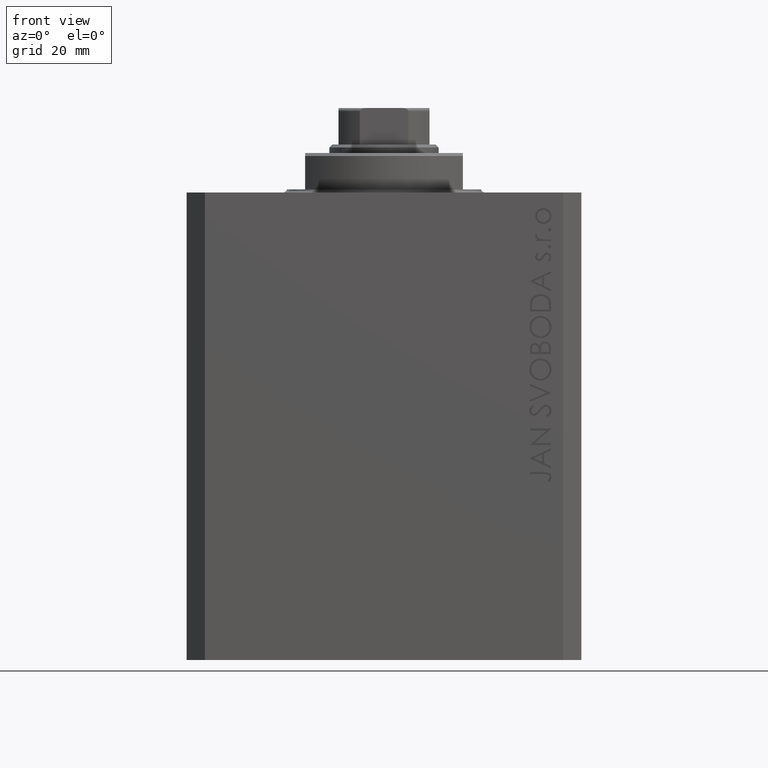
[diagram: clean part render]
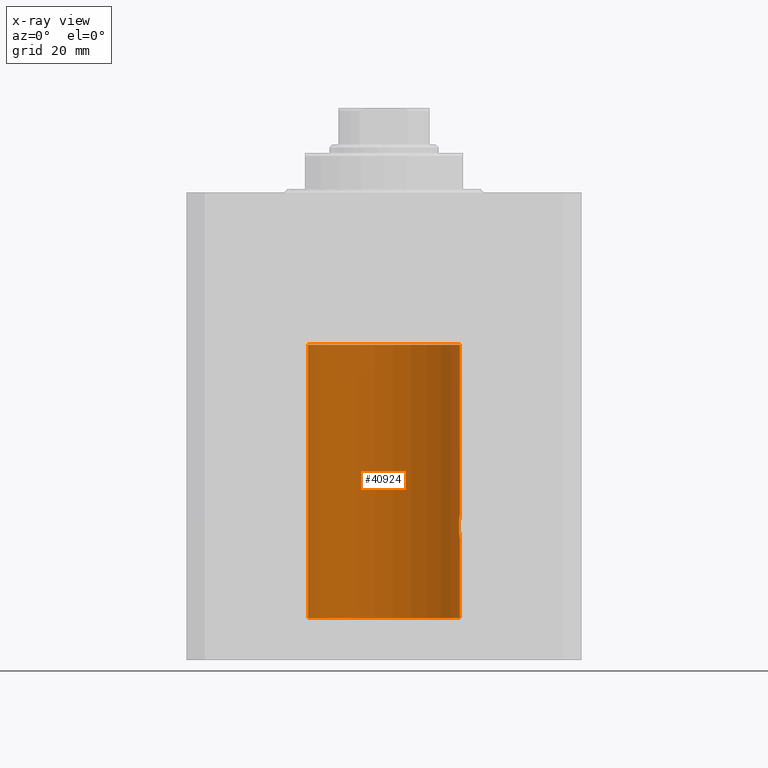
[diagram: x-ray — body ghosted, one internal face saturated and labeled with its STEP entity id]
A machine part, front view, then the same camera in x-ray: the body is ghosted and one INTERNAL B-rep face — a face not visible from any outside direction — is saturated and labeled: STEP entity #40924.
In plain terms, the highlighted cylindrical surface (partial cylindrical patch) has radius 12.5 mm, axis along (0, 0, 1).
Its self-contained STEP definition (entity closure, byte-faithful):
#529 = CARTESIAN_POINT ( 'NONE',  ( 0.000000000000000000, 0.000000000000000000, -25.10000000000000142 ) ) ;
#1538 = CARTESIAN_POINT ( 'NONE',  ( 12.39867611624532806, 1.590019252152835794, -53.77984495929610631 ) ) ;
#1613 = ORIENTED_EDGE ( 'NONE', *, *, #5958, .F. ) ;
#2233 = CARTESIAN_POINT ( 'NONE',  ( 12.48390005916862755, 0.6457215011736598953, -56.89742771554266199 ) ) ;
#2910 = ORIENTED_EDGE ( 'NONE', *, *, #39019, .F. ) ;
#3131 = VERTEX_POINT ( 'NONE', #33976 ) ;
#3554 = ORIENTED_EDGE ( 'NONE', *, *, #4811, .T. ) ;
#3701 = DIRECTION ( 'NONE',  ( 1.000000000000000000, 0.000000000000000000, 0.000000000000000000 ) ) ;
#4056 = VECTOR ( 'NONE', #37257, 1000.000000000000000 ) ;
#4226 = CARTESIAN_POINT ( 'NONE',  ( 12.50000000000000000, -7.266276684081261841E-23, -53.00000000000000000 ) ) ;
#4711 = CARTESIAN_POINT ( 'NONE',  ( 12.34924836377099844, 1.935649219704940194, -54.48002062127162759 ) ) ;
#4811 = EDGE_CURVE ( 'NONE', #25815, #33147, #43018, .T. ) ;
#4858 = DIRECTION ( 'NONE',  ( 1.000000000000000000, 0.000000000000000000, 0.000000000000000000 ) ) ;
#5039 = LINE ( 'NONE', #18837, #35151 ) ;
#5403 = LINE ( 'NONE', #32970, #4056 ) ;
#5535 = ORIENTED_EDGE ( 'NONE', *, *, #28473, .T. ) ;
#5629 = CARTESIAN_POINT ( 'NONE',  ( 12.46019522898365217, 1.002712894177341107, -56.73540896027601832 ) ) ;
#5911 = EDGE_LOOP ( 'NONE', ( #2910, #1613, #3554, #8799, #25724, #37471, #5535 ) ) ;
#5958 = EDGE_CURVE ( 'NONE', #25815, #43359, #40599, .T. ) ;
#7442 = DIRECTION ( 'NONE',  ( 1.000000000000000000, 0.000000000000000000, 0.000000000000000000 ) ) ;
#7658 = CARTESIAN_POINT ( 'NONE',  ( 12.37925647381943506, 1.734744884174225898, -53.99620732598648942 ) ) ;
#8114 = CARTESIAN_POINT ( 'NONE',  ( 12.33896267925302759, 2.000000000000254463, -55.26143174220786136 ) ) ;
#8799 = ORIENTED_EDGE ( 'NONE', *, *, #18656, .T. ) ;
#11051 = CARTESIAN_POINT ( 'NONE',  ( 12.46011632531799407, 1.003644408234889429, -53.26516799687669135 ) ) ;
#11903 = VERTEX_POINT ( 'NONE', #23716 ) ;
#11943 = CARTESIAN_POINT ( 'NONE',  ( 12.40916530024876963, 1.507117913375724649, -53.67865955049006033 ) ) ;
#12050 = CARTESIAN_POINT ( 'NONE',  ( 12.50000000000000000, 0.000000000000000000, -70.09999999999999432 ) ) ;
#12617 = CARTESIAN_POINT ( 'NONE',  ( 12.50000000000000000, -7.266276684081261841E-23, -53.00000000000000000 ) ) ;
#14804 = CARTESIAN_POINT ( 'NONE',  ( 12.50000000000000000, 0.000000000000000000, -25.10000000000000142 ) ) ;
#15360 = CARTESIAN_POINT ( 'NONE',  ( 12.44079900692650753, 1.220007525301745277, -56.59017579083666760 ) ) ;
#15565 = CARTESIAN_POINT ( 'NONE',  ( 12.43037348241797879, 1.320834183883846435, -53.49243837704294435 ) ) ;
#18083 = CARTESIAN_POINT ( 'NONE',  ( 0.000000000000000000, 0.000000000000000000, -70.09999999999999432 ) ) ;
#18458 = VERTEX_POINT ( 'NONE', #14804 ) ;
#18656 = EDGE_CURVE ( 'NONE', #33147, #11903, #39275, .T. ) ;
#18732 = CARTESIAN_POINT ( 'NONE',  ( 12.33896267925302226, 2.000000000000254463, -54.86934705949917657 ) ) ;
#18837 = CARTESIAN_POINT ( 'NONE',  ( -12.50000000000000000, 1.530808498934191127E-15, -70.09999999999999432 ) ) ;
#18976 = CARTESIAN_POINT ( 'NONE',  ( 12.50000000000000533, 0.1324055009716460785, -57.00000000000003553 ) ) ;
#21452 = CARTESIAN_POINT ( 'NONE',  ( 12.46910683544638232, 0.8866026273585058126, -53.20247863689694157 ) ) ;
#22808 = CARTESIAN_POINT ( 'NONE',  ( 12.34779119491631505, 1.947363444907015184, -55.52502775168252924 ) ) ;
#23716 = CARTESIAN_POINT ( 'NONE',  ( 12.33896267925302581, 2.000000000000254463, -55.00000000000000000 ) ) ;
#23838 = DIRECTION ( 'NONE',  ( 0.000000000000000000, 0.000000000000000000, 1.000000000000000000 ) ) ;
#24732 = CARTESIAN_POINT ( 'NONE',  ( -12.50000000000000000, 1.530808498934191127E-15, -70.09999999999999432 ) ) ;
#24856 = CYLINDRICAL_SURFACE ( 'NONE', #43875, 12.50000000000000000 ) ;
#24951 = DIRECTION ( 'NONE',  ( -0.000000000000000000, -0.000000000000000000, 1.000000000000000000 ) ) ;
#24981 = EDGE_CURVE ( 'NONE', #11903, #32798, #41072, .T. ) ;
#25724 = ORIENTED_EDGE ( 'NONE', *, *, #24981, .T. ) ;
#25815 = VERTEX_POINT ( 'NONE', #37577 ) ;
#26200 = CARTESIAN_POINT ( 'NONE',  ( 12.48989642018887736, 0.5185418732824300658, -56.93601292187608465 ) ) ;
#26507 = DIRECTION ( 'NONE',  ( -0.000000000000000000, -0.000000000000000000, 1.000000000000000000 ) ) ;
#28471 = FACE_OUTER_BOUND ( 'NONE', #5911, .T. ) ;
#28473 = EDGE_CURVE ( 'NONE', #18458, #3131, #36428, .T. ) ;
#28492 = AXIS2_PLACEMENT_3D ( 'NONE', #529, #23838, #3701 ) ;
#28923 = CARTESIAN_POINT ( 'NONE',  ( 12.37760587642916477, 1.747868572747724114, -56.00639653169000098 ) ) ;
#29125 = CARTESIAN_POINT ( 'NONE',  ( 12.33896267925302581, 2.000000000000254463, -55.00000000000000000 ) ) ;
#30198 = CARTESIAN_POINT ( 'NONE',  ( 12.50000000000000000, -2.972540724237087735E-15, -57.00000000000000000 ) ) ;
#32295 = CARTESIAN_POINT ( 'NONE',  ( 12.46901623405143766, 0.8878913781257957716, -56.79689651717549737 ) ) ;
#32497 = CARTESIAN_POINT ( 'NONE',  ( 12.37021546997940113, 1.797317011867410219, -54.11295119741077286 ) ) ;
#32647 = AXIS2_PLACEMENT_3D ( 'NONE', #32873, #36043, #4858 ) ;
#32798 = VERTEX_POINT ( 'NONE', #4226 ) ;
#32873 = CARTESIAN_POINT ( 'NONE',  ( 0.000000000000000000, 0.000000000000000000, -70.09999999999999432 ) ) ;
#32970 = CARTESIAN_POINT ( 'NONE',  ( 12.50000000000000000, 0.000000000000000000, -70.09999999999999432 ) ) ;
#32972 = CARTESIAN_POINT ( 'NONE',  ( 12.33896267925302581, 2.000000000000254463, -55.00000000000000000 ) ) ;
#33147 = VERTEX_POINT ( 'NONE', #30198 ) ;
#33194 = CARTESIAN_POINT ( 'NONE',  ( 12.50000000000000000, -2.972540724237087735E-15, -57.00000000000000000 ) ) ;
#33976 = CARTESIAN_POINT ( 'NONE',  ( -12.50000000000000000, 1.530808498934191127E-15, -25.10000000000000142 ) ) ;
#35151 = VECTOR ( 'NONE', #24951, 1000.000000000000000 ) ;
#35230 = CARTESIAN_POINT ( 'NONE',  ( 12.48395395845270528, 0.6446573166014709644, -53.10222124213520090 ) ) ;
#36043 = DIRECTION ( 'NONE',  ( 0.000000000000000000, 0.000000000000000000, 1.000000000000000000 ) ) ;
#36199 = EDGE_CURVE ( 'NONE', #32798, #18458, #5403, .T. ) ;
#36235 = VECTOR ( 'NONE', #26507, 1000.000000000000000 ) ;
#36428 = CIRCLE ( 'NONE', #28492, 12.50000000000000000 ) ;
#36594 = CARTESIAN_POINT ( 'NONE',  ( 12.43016561391612207, 1.322713721413891319, -56.50578877836699121 ) ) ;
#37257 = DIRECTION ( 'NONE',  ( -0.000000000000000000, -0.000000000000000000, 1.000000000000000000 ) ) ;
#37471 = ORIENTED_EDGE ( 'NONE', *, *, #36199, .T. ) ;
#37577 = CARTESIAN_POINT ( 'NONE',  ( 12.50000000000000000, 0.000000000000000000, -70.09999999999999432 ) ) ;
#39019 = EDGE_CURVE ( 'NONE', #43359, #3131, #5039, .T. ) ;
#39275 = B_SPLINE_CURVE_WITH_KNOTS ( 'NONE', 3,
 ( #33194, #18976, #42701, #26200, #2233, #32295, #5629, #15360, #36594, #43383, #28923, #22808, #8114, #32972 ),
 .UNSPECIFIED., .F., .F.,
 ( 4, 2, 2, 2, 2, 2, 4 ),
 ( 4.027442422438711134E-18, 0.0003915305205218086665, 0.0007830610410436133215, 0.001174591561565418085, 0.001566122082087222740, 0.002349183123130847445, 0.003132244164174471934 ),
 .UNSPECIFIED. ) ;
#39291 = CARTESIAN_POINT ( 'NONE',  ( 12.35520276972935250, 1.897773362058245761, -54.35528278634336630 ) ) ;
#39516 = CARTESIAN_POINT ( 'NONE',  ( 12.34110728646152211, 1.986893050944461780, -54.73661347764981144 ) ) ;
#40188 = CARTESIAN_POINT ( 'NONE',  ( 12.50000000000000000, 0.1306079576516681051, -52.99999999999999289 ) ) ;
#40599 = CIRCLE ( 'NONE', #32647, 12.50000000000000000 ) ;
#40924 = ADVANCED_FACE ( 'NONE', ( #28471 ), #24856, .F. ) ;
#41072 = B_SPLINE_CURVE_WITH_KNOTS ( 'NONE', 3,
 ( #29125, #18732, #39516, #4711, #39291, #32497, #7658, #1538, #11943, #15565, #42021, #11051, #21452, #35230, #43360, #43580, #40188, #12617 ),
 .UNSPECIFIED., .F., .F.,
 ( 4, 2, 2, 2, 2, 2, 2, 2, 4 ),
 ( 0.003132244164174471934, 0.003523586189974247697, 0.003914928215774023459, 0.004306270241573798355, 0.004697612267373574985, 0.005088954293173349880, 0.005480296318973125642, 0.005871638344772901405, 0.006262980370572677168 ),
 .UNSPECIFIED. ) ;
#41594 = DIRECTION ( 'NONE',  ( -0.000000000000000000, -0.000000000000000000, 1.000000000000000000 ) ) ;
#42021 = CARTESIAN_POINT ( 'NONE',  ( 12.44079117518645461, 1.220047488436375227, -53.40989676335082237 ) ) ;
#42701 = CARTESIAN_POINT ( 'NONE',  ( 12.49789833780794446, 0.2625555164371062844, -56.98698170822145670 ) ) ;
#43018 = LINE ( 'NONE', #12050, #36235 ) ;
#43359 = VERTEX_POINT ( 'NONE', #24732 ) ;
#43360 = CARTESIAN_POINT ( 'NONE',  ( 12.48983962833819028, 0.5199974825204921602, -53.06435160808016605 ) ) ;
#43383 = CARTESIAN_POINT ( 'NONE',  ( 12.39869754437269123, 1.598954131913734145, -56.22932152813013573 ) ) ;
#43580 = CARTESIAN_POINT ( 'NONE',  ( 12.49788668346400122, 0.2632864803365722595, -53.01308975838332316 ) ) ;
#43875 = AXIS2_PLACEMENT_3D ( 'NONE', #18083, #41594, #7442 ) ;